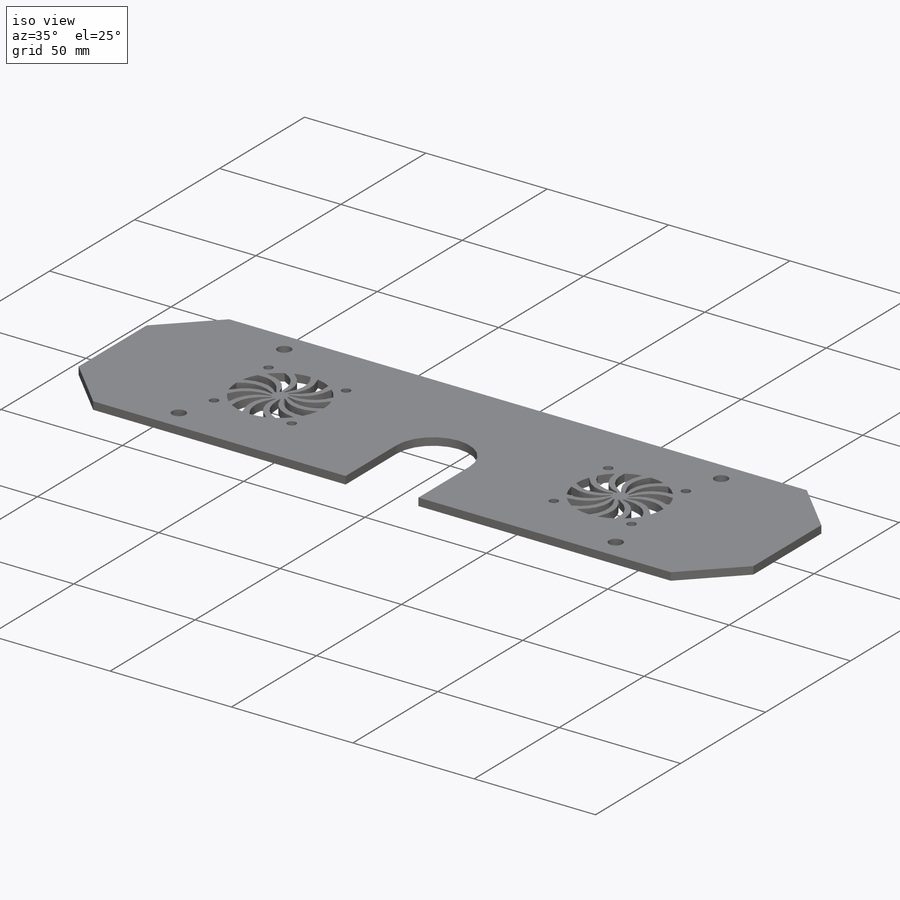
[diagram: iso view]
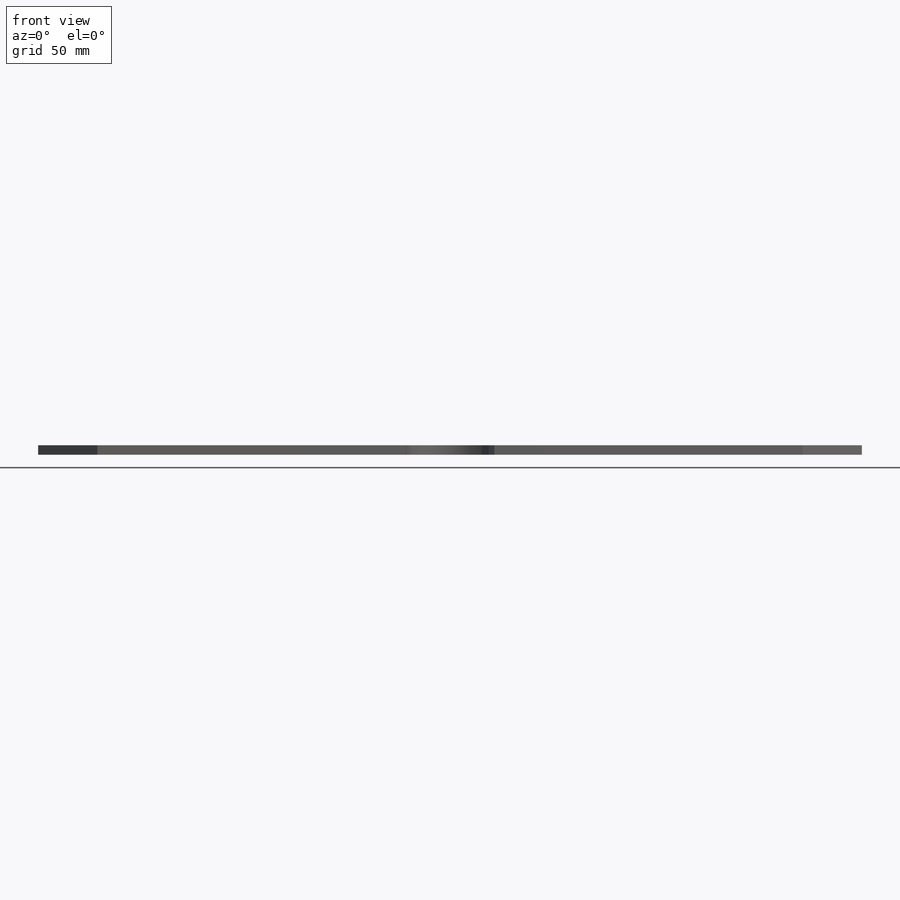
[diagram: front view]
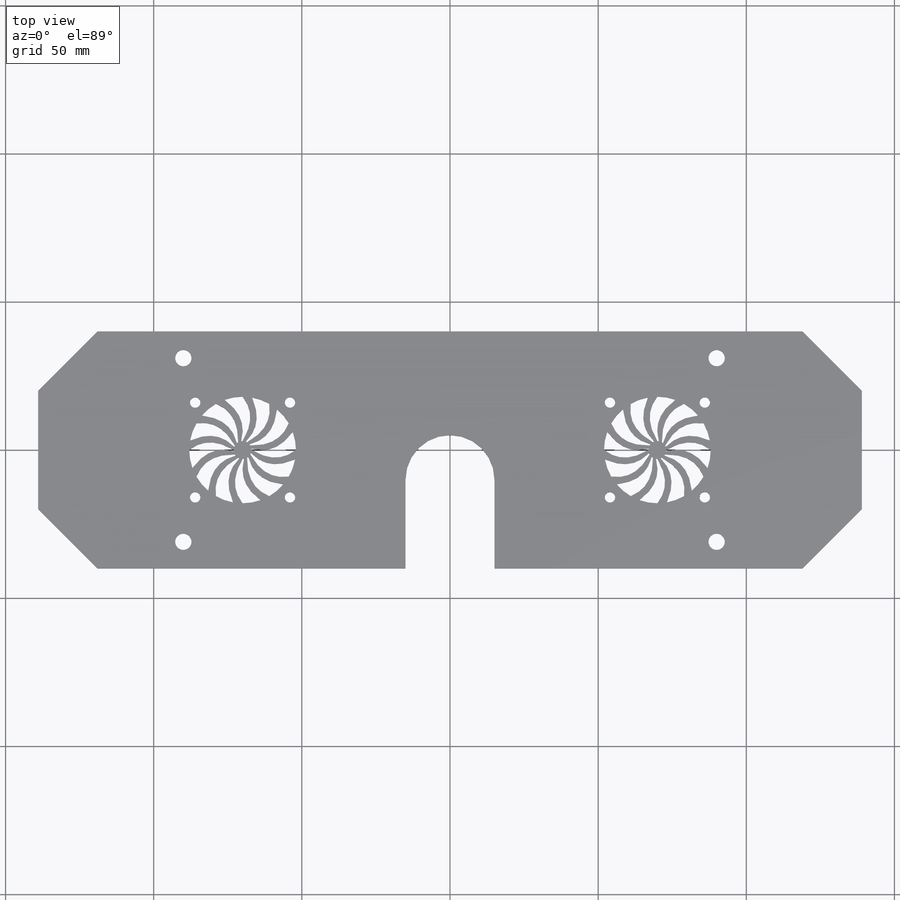
[diagram: top view]
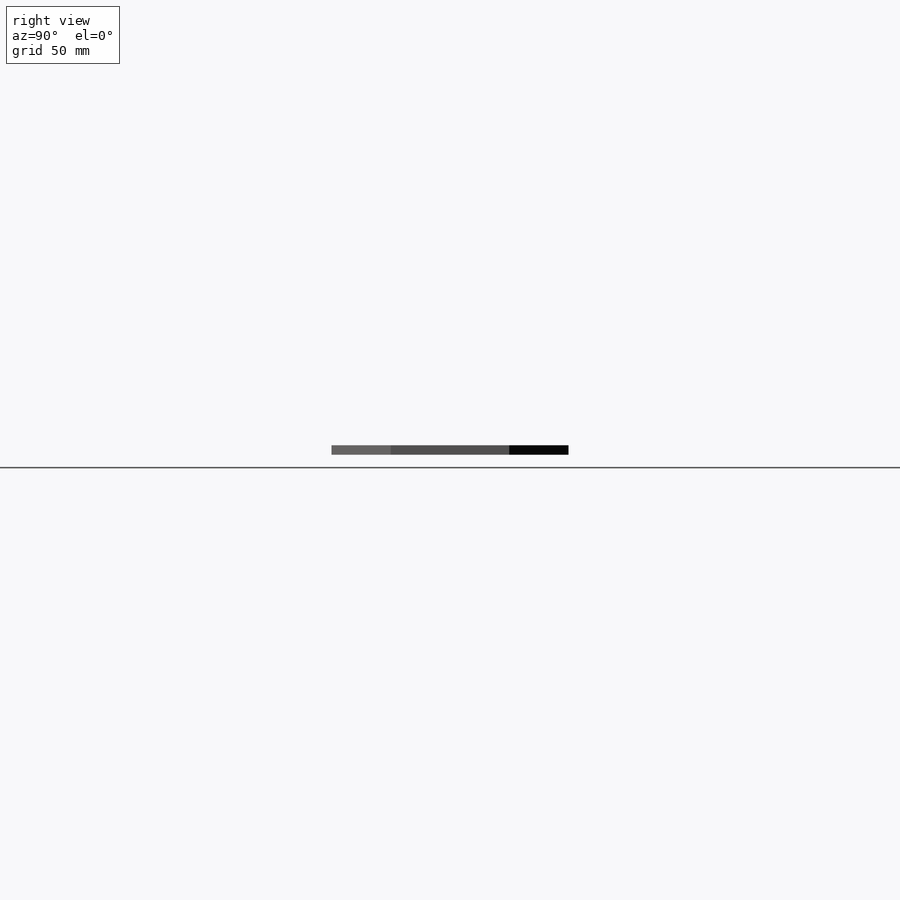
[diagram: right view]
SOLIDWORKS PART (.sldprt)
format: sldprt  version: not decoded by parser v0  size: 383,488 bytes
history: native  units: mm
features: sketch x5, cut_extrude x4, material x1, extrude x1, chamfer x1, pattern_circular x1, mirror x1 (+13 scaffold rows collapsed)
feature tree (27):
  scaffold x13  (default folders/planes/origin — collapsed)
  material  "Material <not specified>"
  sketch  "Sketch1"  dims[D1=278.0mm D2=80.0mm]
  extrude  "Boss-Extrude1"  Depth=3.175mm
  chamfer  "Chamfer1"  Distance=20mm Angle=45deg
  sketch  "Sketch2"  dims[D4=3.5mm D1=70.0mm D2=32.0mm D3=32.0mm]
  cut_extrude  "Cut-Extrude1"  Depth=10mm
  sketch  "Sketch3"  dims[D1=5.5mm D2=90.0mm D3=9.0mm]
  cut_extrude  "Cut-Extrude2"  Depth=10mm
  sketch  "Sketch4"  dims[D1=15.0mm D2=30.0mm]
  cut_extrude  "Cut-Extrude3"  Depth=10mm
  sketch  "Sketch6"  dims[D1=18.0mm D2=3.0mm D3=~16.194595mm D4=~16.109808mm]
  cut_extrude  "Cut-Extrude8"  Depth=10mm
  pattern_circular  "CirPattern1"  Count=12 Angle=30deg
  mirror  "Mirror1"
decode coverage: 12 of 13 modeling features carry decoded parameters
note: ~ marks probable driven/reference dimensions
note: suppression state not decoded; provenance and decode notes live in map.json
